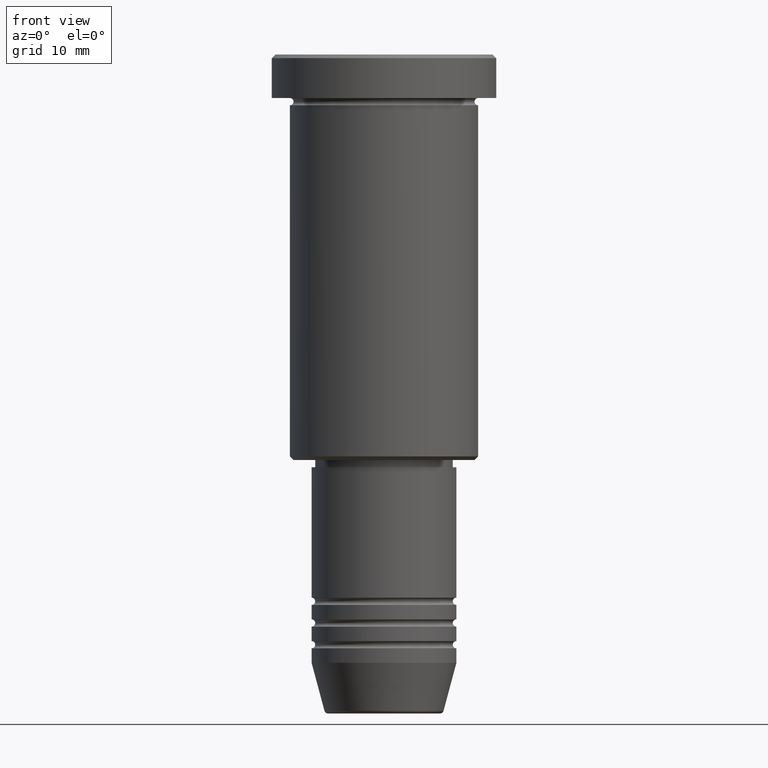
[diagram: clean part render]
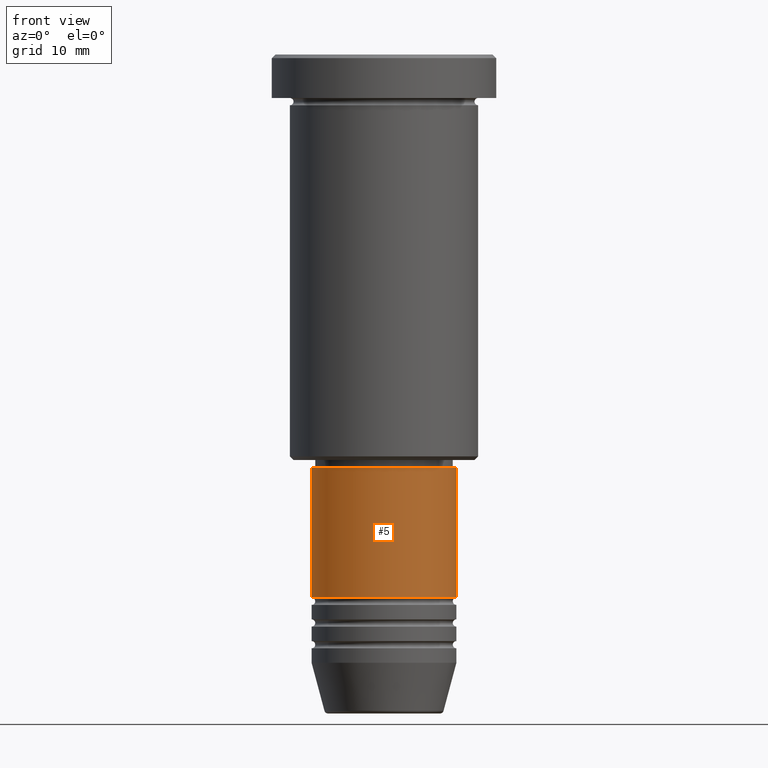
[diagram: same view with one face highlighted and labeled with its STEP entity id]
A machine part, front view. The second image highlights one B-rep face of the part: STEP entity #5.
In plain terms, the highlighted cylindrical surface (partial cylindrical patch) has radius 10 mm, axis along (-0, -0, 1).
Its self-contained STEP definition (entity closure, byte-faithful):
#4 = ORIENTED_EDGE ( 'NONE', *, *, #257, .F. ) ;
#5 = ADVANCED_FACE ( 'NONE', ( #204 ), #937, .T. ) ;
#16 = ORIENTED_EDGE ( 'NONE', *, *, #45, .T. ) ;
#45 = EDGE_CURVE ( 'NONE', #677, #1171, #595, .T. ) ;
#103 = CARTESIAN_POINT ( 'NONE',  ( 0.000000000000000000, 0.000000000000000000, -57.00000000000000000 ) ) ;
#118 = CIRCLE ( 'NONE', #789, 10.00000000000000000 ) ;
#166 = DIRECTION ( 'NONE',  ( -0.000000000000000000, -0.000000000000000000, 1.000000000000000000 ) ) ;
#175 = CARTESIAN_POINT ( 'NONE',  ( 10.00000000000000000, 0.000000000000000000, -57.00000000000000000 ) ) ;
#204 = FACE_OUTER_BOUND ( 'NONE', #632, .T. ) ;
#210 = AXIS2_PLACEMENT_3D ( 'NONE', #103, #166, #1095 ) ;
#257 = EDGE_CURVE ( 'NONE', #556, #379, #830, .T. ) ;
#309 = AXIS2_PLACEMENT_3D ( 'NONE', #590, #489, #934 ) ;
#376 = ORIENTED_EDGE ( 'NONE', *, *, #1064, .F. ) ;
#379 = VERTEX_POINT ( 'NONE', #970 ) ;
#391 = CARTESIAN_POINT ( 'NONE',  ( -10.00000000000000000, 1.224646799147353256E-15, 0.000000000000000000 ) ) ;
#409 = DIRECTION ( 'NONE',  ( -0.000000000000000000, -0.000000000000000000, 1.000000000000000000 ) ) ;
#489 = DIRECTION ( 'NONE',  ( -0.000000000000000000, -0.000000000000000000, 1.000000000000000000 ) ) ;
#491 = ORIENTED_EDGE ( 'NONE', *, *, #507, .T. ) ;
#507 = EDGE_CURVE ( 'NONE', #556, #677, #118, .T. ) ;
#550 = CARTESIAN_POINT ( 'NONE',  ( -10.00000000000000000, 1.224646799147353256E-15, -74.99999999999998579 ) ) ;
#556 = VERTEX_POINT ( 'NONE', #550 ) ;
#590 = CARTESIAN_POINT ( 'NONE',  ( 0.000000000000000000, 0.000000000000000000, 0.000000000000000000 ) ) ;
#595 = LINE ( 'NONE', #1143, #751 ) ;
#618 = DIRECTION ( 'NONE',  ( 1.000000000000000000, 0.000000000000000000, 0.000000000000000000 ) ) ;
#632 = EDGE_LOOP ( 'NONE', ( #4, #491, #16, #376 ) ) ;
#633 = CARTESIAN_POINT ( 'NONE',  ( 0.000000000000000000, 0.000000000000000000, -74.99999999999998579 ) ) ;
#677 = VERTEX_POINT ( 'NONE', #863 ) ;
#751 = VECTOR ( 'NONE', #409, 1000.000000000000000 ) ;
#789 = AXIS2_PLACEMENT_3D ( 'NONE', #633, #1061, #618 ) ;
#826 = CIRCLE ( 'NONE', #210, 10.00000000000000000 ) ;
#830 = LINE ( 'NONE', #391, #938 ) ;
#863 = CARTESIAN_POINT ( 'NONE',  ( 10.00000000000000000, 0.000000000000000000, -74.99999999999998579 ) ) ;
#934 = DIRECTION ( 'NONE',  ( 1.000000000000000000, 0.000000000000000000, 0.000000000000000000 ) ) ;
#937 = CYLINDRICAL_SURFACE ( 'NONE', #309, 10.00000000000000000 ) ;
#938 = VECTOR ( 'NONE', #1119, 1000.000000000000000 ) ;
#970 = CARTESIAN_POINT ( 'NONE',  ( -10.00000000000000000, 1.224646799147353256E-15, -57.00000000000000000 ) ) ;
#1061 = DIRECTION ( 'NONE',  ( -0.000000000000000000, -0.000000000000000000, 1.000000000000000000 ) ) ;
#1064 = EDGE_CURVE ( 'NONE', #379, #1171, #826, .T. ) ;
#1095 = DIRECTION ( 'NONE',  ( 1.000000000000000000, 0.000000000000000000, 0.000000000000000000 ) ) ;
#1119 = DIRECTION ( 'NONE',  ( -0.000000000000000000, -0.000000000000000000, 1.000000000000000000 ) ) ;
#1143 = CARTESIAN_POINT ( 'NONE',  ( 10.00000000000000000, 0.000000000000000000, 0.000000000000000000 ) ) ;
#1171 = VERTEX_POINT ( 'NONE', #175 ) ;